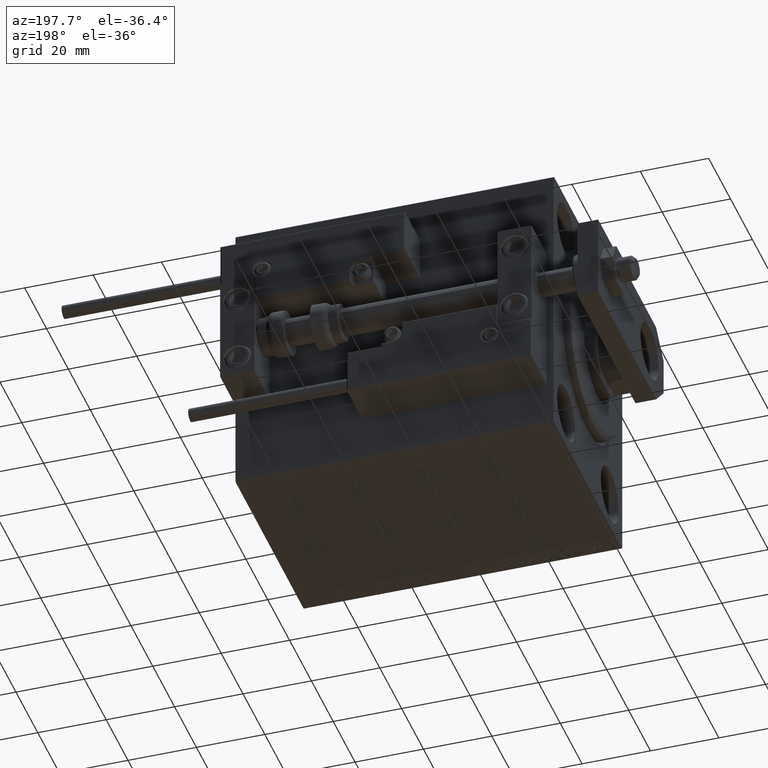
[diagram: clean part render]
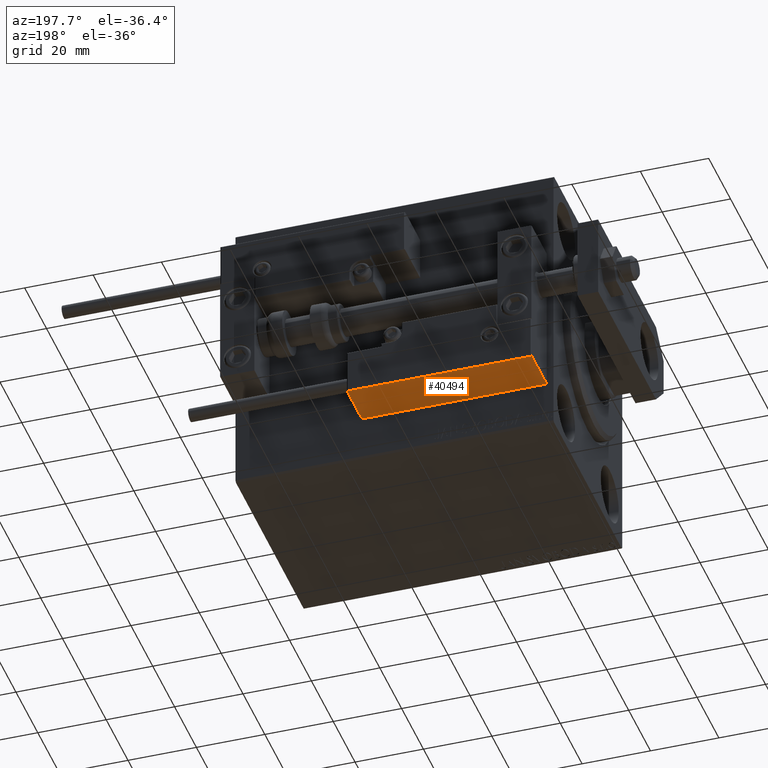
[diagram: same view with one face highlighted and labeled with its STEP entity id]
A machine part, auxiliary view. The second image highlights one B-rep face of the part: STEP entity #40494.
In plain terms, the highlighted planar face has unit normal (0, 0, 1).
Its self-contained STEP definition (entity closure, byte-faithful):
#123 = EDGE_CURVE ( 'NONE', #47266, #44735, #46110, .T. ) ;
#3262 = VERTEX_POINT ( 'NONE', #7743 ) ;
#3758 = VECTOR ( 'NONE', #42307, 1000.000000000000000 ) ;
#3820 = EDGE_LOOP ( 'NONE', ( #25910, #27480, #19586, #22665 ) ) ;
#5515 = CARTESIAN_POINT ( 'NONE',  ( 27.00000000000006395, 20.00000000000001776, 14.00000000000000000 ) ) ;
#5763 = DIRECTION ( 'NONE',  ( -6.424901762877063495E-17, -1.000000000000000000, 0.000000000000000000 ) ) ;
#7743 = CARTESIAN_POINT ( 'NONE',  ( 27.00000000000006395, 20.00000000000001776, 0.000000000000000000 ) ) ;
#10085 = DIRECTION ( 'NONE',  ( 1.000000000000000000, -6.424901762877063495E-17, 0.000000000000000000 ) ) ;
#11822 = DIRECTION ( 'NONE',  ( -0.000000000000000000, -0.000000000000000000, -1.000000000000000000 ) ) ;
#13048 = LINE ( 'NONE', #31789, #42942 ) ;
#15953 = CARTESIAN_POINT ( 'NONE',  ( -26.99999999999993605, 20.00000000000002132, 14.00000000000000000 ) ) ;
#17407 = VECTOR ( 'NONE', #11822, 1000.000000000000000 ) ;
#17489 = VECTOR ( 'NONE', #29505, 1000.000000000000000 ) ;
#18486 = EDGE_CURVE ( 'NONE', #3262, #44735, #13048, .T. ) ;
#19586 = ORIENTED_EDGE ( 'NONE', *, *, #39872, .T. ) ;
#19923 = LINE ( 'NONE', #35600, #17407 ) ;
#21724 = PLANE ( 'NONE',  #27148 ) ;
#22665 = ORIENTED_EDGE ( 'NONE', *, *, #18486, .T. ) ;
#25910 = ORIENTED_EDGE ( 'NONE', *, *, #123, .F. ) ;
#27148 = AXIS2_PLACEMENT_3D ( 'NONE', #5515, #5763, #10085 ) ;
#27480 = ORIENTED_EDGE ( 'NONE', *, *, #31999, .T. ) ;
#28946 = CARTESIAN_POINT ( 'NONE',  ( -26.99999999999993605, 20.00000000000002132, 0.000000000000000000 ) ) ;
#29505 = DIRECTION ( 'NONE',  ( 1.000000000000000000, -6.424901762877063495E-17, -0.000000000000000000 ) ) ;
#30017 = LINE ( 'NONE', #45458, #17489 ) ;
#31789 = CARTESIAN_POINT ( 'NONE',  ( 27.00000000000006395, 20.00000000000001776, 0.000000000000000000 ) ) ;
#31999 = EDGE_CURVE ( 'NONE', #47266, #44644, #30017, .T. ) ;
#35586 = DIRECTION ( 'NONE',  ( -1.000000000000000000, 6.424901762877062263E-17, 0.000000000000000000 ) ) ;
#35600 = CARTESIAN_POINT ( 'NONE',  ( 27.00000000000006395, 20.00000000000001776, 14.00000000000000000 ) ) ;
#37413 = CARTESIAN_POINT ( 'NONE',  ( 27.00000000000006395, 20.00000000000001776, 13.70000000000000107 ) ) ;
#39872 = EDGE_CURVE ( 'NONE', #44644, #3262, #19923, .T. ) ;
#40494 = ADVANCED_FACE ( 'NONE', ( #45006 ), #21724, .F. ) ;
#42282 = CARTESIAN_POINT ( 'NONE',  ( -26.99999999999993605, 20.00000000000002132, 13.70000000000000107 ) ) ;
#42307 = DIRECTION ( 'NONE',  ( -0.000000000000000000, -0.000000000000000000, -1.000000000000000000 ) ) ;
#42942 = VECTOR ( 'NONE', #35586, 1000.000000000000000 ) ;
#44644 = VERTEX_POINT ( 'NONE', #37413 ) ;
#44735 = VERTEX_POINT ( 'NONE', #28946 ) ;
#45006 = FACE_OUTER_BOUND ( 'NONE', #3820, .T. ) ;
#45458 = CARTESIAN_POINT ( 'NONE',  ( 27.00000000000006395, 20.00000000000001776, 13.70000000000000107 ) ) ;
#46110 = LINE ( 'NONE', #15953, #3758 ) ;
#47266 = VERTEX_POINT ( 'NONE', #42282 ) ;